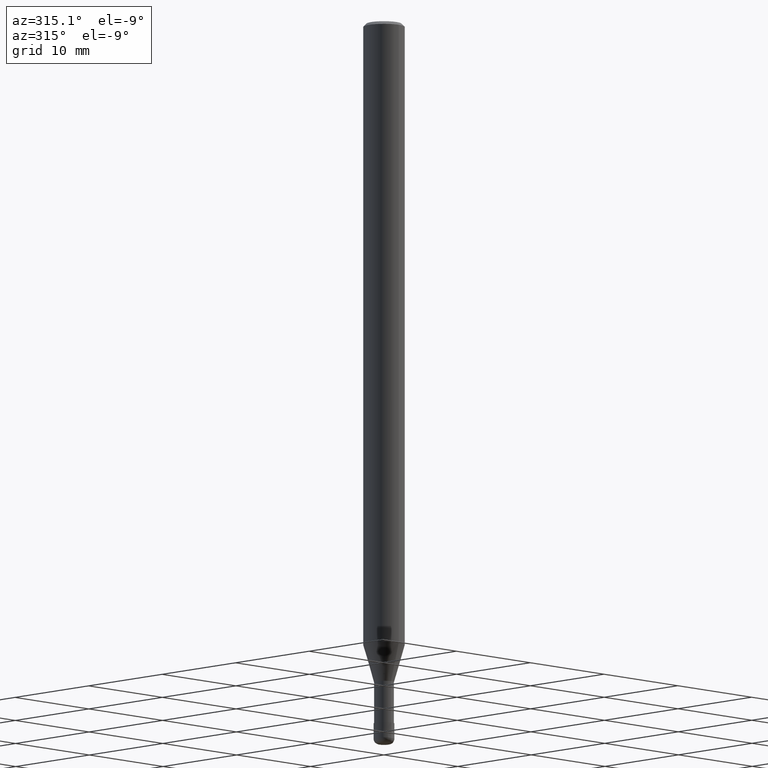
[diagram: clean part render]
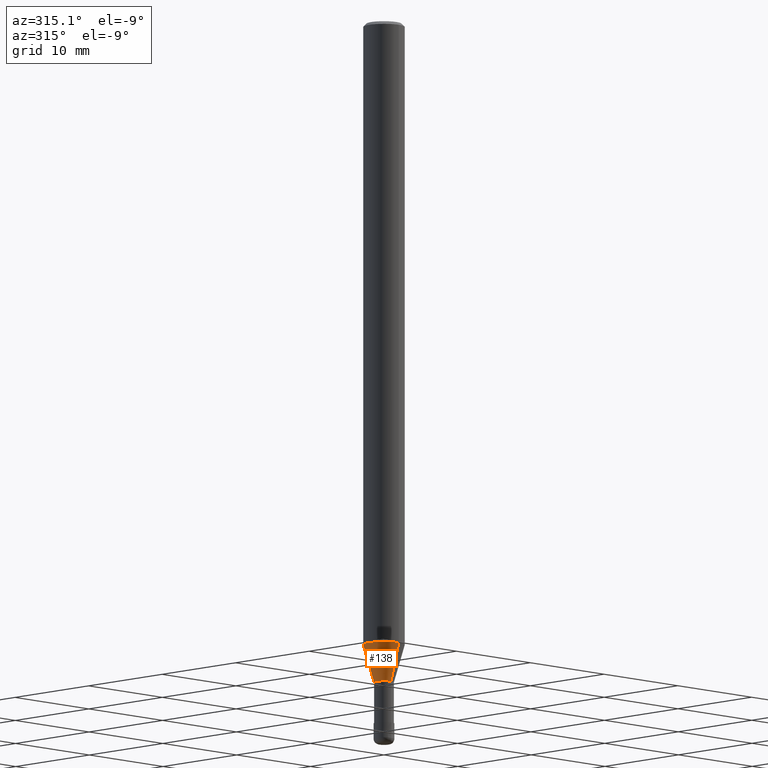
[diagram: same view with one face highlighted and labeled with its STEP entity id]
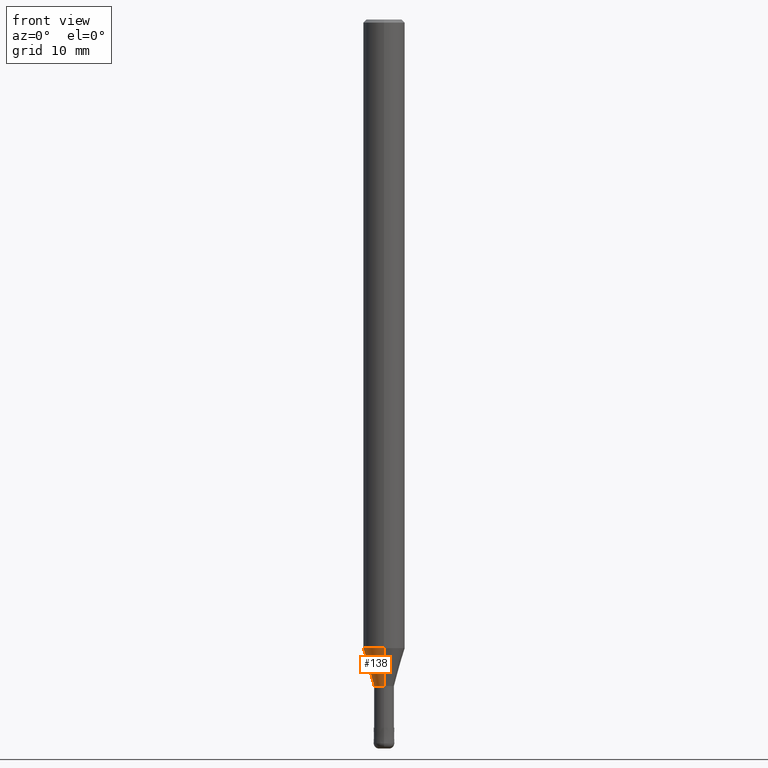
[diagram: same view with one face highlighted and labeled with its STEP entity id]
A machine part, auxiliary view. The second image highlights one B-rep face of the part: STEP entity #138.
A second angle (front view) of the same face is appended — the face is thin or edge-on in the first view.
In plain terms, the highlighted conical surface has half-angle 16.001 deg.
Its self-contained STEP definition (entity closure, byte-faithful):
#108=EDGE_CURVE('',#172,#120,#261,.T.);
#120=VERTEX_POINT('',#275);
#138=ADVANCED_FACE('',(#295),#296,.T.);
#172=VERTEX_POINT('',#336);
#174=VERTEX_POINT('',#338);
#202=VERTEX_POINT('',#367);
#212=EDGE_CURVE('',#174,#202,#378,.T.);
#218=EDGE_CURVE('',#202,#120,#385,.T.);
#220=EDGE_CURVE('',#172,#174,#387,.T.);
#261=CIRCLE('',#425,0.95495);
#275=CARTESIAN_POINT('',(0.0,0.95495,-64.0));
#295=FACE_OUTER_BOUND('',#466,.T.);
#296=CONICAL_SURFACE('',#467,1.47745,0.279277990456152);
#336=CARTESIAN_POINT('',(1.16943783758268E-016,-0.95495,-64.0));
#338=CARTESIAN_POINT('',(2.44915147732706E-016,-1.99995,-60.356));
#367=CARTESIAN_POINT('',(0.0,1.99995,-60.356));
#378=CIRCLE('',#572,1.99995);
#385=LINE('',#581,#582);
#387=LINE('',#585,#586);
#425=AXIS2_PLACEMENT_3D('',#610,#611,#612);
#466=EDGE_LOOP('',(#657,#658,#659,#660));
#467=AXIS2_PLACEMENT_3D('',#661,#662,#663);
#572=AXIS2_PLACEMENT_3D('',#754,#755,#756);
#581=CARTESIAN_POINT('',(-1.80929465745487E-016,1.47745,-62.178));
#582=VECTOR('',#768,1.0);
#585=CARTESIAN_POINT('',(1.80929465745487E-016,-1.47745,-62.178));
#586=VECTOR('',#769,1.0);
#610=CARTESIAN_POINT('',(0.0,0.0,-64.0));
#611=DIRECTION('',(0.0,0.0,-1.0));
#612=DIRECTION('',(0.0,1.0,0.0));
#657=ORIENTED_EDGE('',*,*,#218,.T.);
#658=ORIENTED_EDGE('',*,*,#108,.F.);
#659=ORIENTED_EDGE('',*,*,#220,.T.);
#660=ORIENTED_EDGE('',*,*,#212,.T.);
#661=CARTESIAN_POINT('',(0.0,0.0,-62.178));
#662=DIRECTION('',(-0.0,-0.0,1.0));
#663=DIRECTION('',(0.0,1.0,0.0));
#754=CARTESIAN_POINT('',(0.0,0.0,-60.356));
#755=DIRECTION('',(0.0,0.0,-1.0));
#756=DIRECTION('',(0.0,1.0,0.0));
#768=DIRECTION('',(3.37577051438857E-017,-0.275661685393983,-0.961254719211172));
#769=DIRECTION('',(3.37577051438857E-017,-0.275661685393983,0.961254719211172));